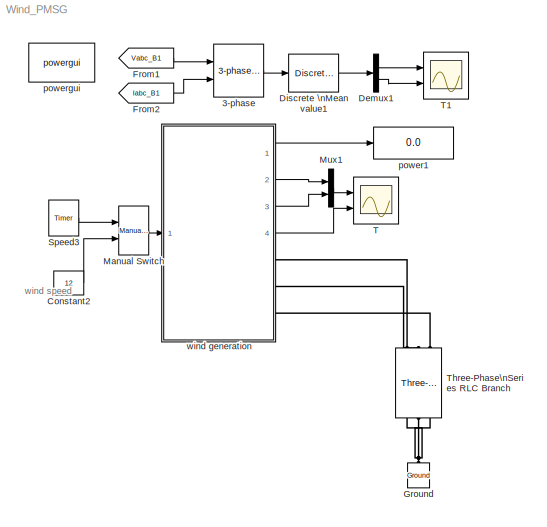
MODEL Wind_PMSG
KIND model
BLOCK [Reference] 3-phase   REF=powerlib_extras/Measurements/3-phase \nInstantaneous \nActive & Reactive Power
  FunctionWithSeparateData = off
  Ports = [2, 1]
  RTWMemSecDataConstants = Inherit from model
  RTWMemSecDataInternal = Inherit from model
  RTWMemSecDataParameters = Inherit from model
  RTWMemSecFuncExecute = Inherit from model
  RTWMemSecFuncInitTerm = Inherit from model
  SID = 1
  ShowPortLabels = FromPortIcon
  SourceBlock = powerlib_extras/Measurements/3-phase \nInstantaneous \nActive & Reactive Power
  SourceProductBaseCode = PS
  SourceProductName = Simscape Electrical
  SourceType = 3-phase instantaneous active and reactive power
  SystemSampleTime = -1
BLOCK [Constant] Constant2
  SID = 2
  Value = 12
BLOCK [Demux] Demux1
  DisplayOption = bar
  Outputs = 2
  Ports = [1, 2]
  SID = 3
BLOCK [Reference] Discrete \nMean value1  REF=powerlib_extras/Discrete\nMeasurements/Discrete \nMean value
  Freq = 50
  FunctionWithSeparateData = off
  Ports = [1, 1]
  RTWMemSecDataConstants = Inherit from model
  RTWMemSecDataInternal = Inherit from model
  RTWMemSecDataParameters = Inherit from model
  RTWMemSecFuncExecute = Inherit from model
  RTWMemSecFuncInitTerm = Inherit from model
  SID = 4
  ShowPortLabels = FromPortIcon
  SourceBlock = powerlib_extras/Discrete\nMeasurements/Discrete \nMean value
  SourceProductBaseCode = PS
  SourceProductName = Simscape Electrical
  SourceType = Discrete Mean value
  SystemSampleTime = -1
  Ts = 20e-6
  Vinit = 0
BLOCK [From] From1
  CloseFcn = tagdialog Close
  GotoTag = Vabc_B1
  SID = 5
  TagVisibility = global
BLOCK [From] From2
  CloseFcn = tagdialog Close
  GotoTag = Iabc_B1
  SID = 6
  TagVisibility = global
BLOCK [Reference] Ground  REF=powerlib/Elements/Ground
  LConnTagsString = a
  LeftPortType = p1
  PhysicalDomain = powersysdomain
  Ports = [0, 0, 0, 0, 0, 1]
  RightPortType = p1
  SID = 7
  SourceBlock = powerlib/Elements/Ground
  SourceProductBaseCode = PS
  SourceProductName = Simscape Electrical
  SourceType = Ground
  SubClassName = unknown
BLOCK [Reference] Manual Switch  REF=simulink/Signal\nRouting/Manual Switch
  FunctionWithSeparateData = off
  Ports = [2, 1]
  RTWMemSecDataConstants = Inherit from model
  RTWMemSecDataInternal = Inherit from model
  RTWMemSecDataParameters = Inherit from model
  RTWMemSecFuncExecute = Inherit from model
  RTWMemSecFuncInitTerm = Inherit from model
  SID = 8
  ShowPortLabels = FromPortIcon
  SourceBlock = simulink/Signal\nRouting/Manual Switch
  SourceProductBaseCode = SL
  SourceProductName = Simulink
  SourceType = Manual Switch
  SystemSampleTime = -1
  action = 0
  sw = 0
  varsize = off
BLOCK [Mux] Mux1
  DisplayOption = bar
  Inputs = 2
  Ports = [2, 1]
  SID = 9
BLOCK [Reference] Speed3  REF=powerlib_extras/Control \nBlocks/Timer
  FunctionWithSeparateData = off
  Ports = [0, 1]
  RTWMemSecDataConstants = Inherit from model
  RTWMemSecDataInternal = Inherit from model
  RTWMemSecDataParameters = Inherit from model
  RTWMemSecFuncExecute = Inherit from model
  RTWMemSecFuncInitTerm = Inherit from model
  SID = 10
  ShowPortLabels = FromPortIcon
  SourceBlock = powerlib_extras/Control \nBlocks/Timer
  SourceProductBaseCode = PS
  SourceProductName = Simscape Electrical
  SourceType = Timer
  SystemSampleTime = -1
  e = [12 7 12]
  t = [0 3 5]
BLOCK [Scope] T
  Floating = off
  NumInputPorts = 2
  Ports = [2]
  SID = 11
  ScopeSpecificationString = C++SS(StrPVP('Location','[-103, 381, 1177, 635]'),StrPVP('Open','off'),MxPVP('AxesTitles',54,'struct(''axes1'',''%<SignalLabel>'',''axes2'',''%<SignalLabel>'')'),StrPVP('YMin','39.75~152.46'),StrPVP('YMax','39.97~152.59'),StrPVP('SaveToWorkspace','on'),StrPVP('SaveName','Wind_MPPT'),StrPVP('DataFormat','StructureWithTime'),StrPVP('LimitDataPoints','off'),StrPVP('BlockParamSampleInput','on'),StrPVP...<+59ch>
BLOCK [Scope] T1
  Floating = off
  NumInputPorts = 2
  Ports = [2]
  SID = 12
  ScopeSpecificationString = C++SS(StrPVP('Location','[5, 43, 1285, 714]'),StrPVP('Open','off'),MxPVP('AxesTitles',54,'struct(''axes1'',''%<SignalLabel>'',''axes2'',''%<SignalLabel>'')'),StrPVP('YMin','4380~-4e-014'),StrPVP('YMax','4520~3.5e-014'),StrPVP('SaveToWorkspace','on'),StrPVP('SaveName','Wind_MPPT1'),StrPVP('DataFormat','StructureWithTime'),StrPVP('LimitDataPoints','off'),StrPVP('BlockParamSampleInput','on'),StrPVP('...<+57ch>
BLOCK [Reference] Three-Phase\nSeries RLC Branch  REF=powerlib/Elements/Three-Phase\nSeries RLC Branch
  AttributesFormatString = \\n
  BranchType = R
  Capacitance = 1e-6
  Inductance = 1e-3
  LConnTagsString = A|B|C
  LeftPortType = p1
  Measurements = None
  PhysicalDomain = powersysdomain
  Ports = [0, 0, 0, 0, 0, 3, 3]
  RConnTagsString = A|B|C
  Resistance = 25
  RightPortType = p1
  SID = 13
  SourceBlock = powerlib/Elements/Three-Phase\nSeries RLC Branch
  SourceProductBaseCode = PS
  SourceProductName = Simscape Electrical
  SourceType = Three-Phase Series RLC Branch
  SubClassName = unknown
BLOCK [Display] power1
  Decimation = 1
  Ports = [1]
  SID = 14
  SampleTime = 1e-3
BLOCK [Reference] powergui  REF=powerlib/powergui
  DisplayStyle = 1
  EnableUseOfTLC = off
  Frange = [0:2:500]
  FreqAxis = off
  FunctionMessages = off
  FunctionWithSeparateData = off
  HookPort = off
  Interpol = off
  MaxFrequency = 1000
  Ports = []
  RTWMemSecDataConstants = Inherit from model
  RTWMemSecDataInternal = Inherit from model
  RTWMemSecDataParameters = Inherit from model
  RTWMemSecFuncExecute = Inherit from model
  RTWMemSecFuncInitTerm = Inherit from model
  RestoreLinks = warning
  RmsSteady = 1
  SID = 15
  SPID = off
  SampleTime = 20e-6
  ShowGrid = off
  ShowPortLabels = FromPortIcon
  SourceBlock = powerlib/powergui
  SourceProductBaseCode = PS
  SourceProductName = Simscape Electrical
  SourceType = PSB option menu block
  StartTime = 0.0
  SwTol = 0
  SystemSampleTime = -1
  Ts = 0
  UserData = DataTag0
  UserDataPersistent = on
  Xlog = on
  Ylog = off
  ZoomFFT = on
  cycles = 1
  display = off
  echomessages = off
  frequency = 60
  frequencyindice = 0
  frequencyindicesteady = 1
  fundamental = 60
  methode = off
  save = off
  variable = ZData
  x0status = blocks
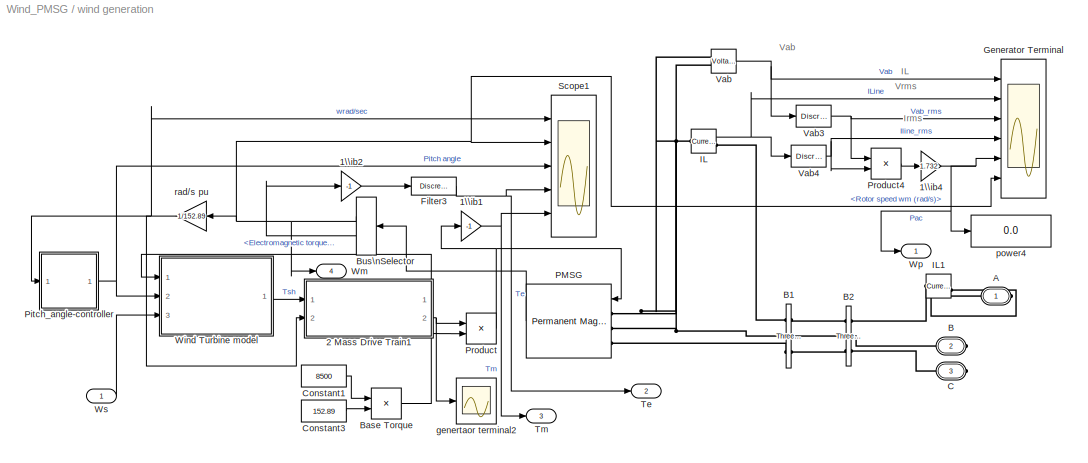
BLOCK [SubSystem] wind generation
  Ports = [1, 4, 0, 0, 0, 0, 3]
  RequestExecContextInheritance = off
  SID = 16
BLOCK [Gain] wind generation/1\\ib1
  Gain = -1
  SID = 18
BLOCK [Gain] wind generation/1\\ib2
  Gain = -1
  SID = 19
BLOCK [Gain] wind generation/1\\ib4
  Gain = 1.732
  SID = 20
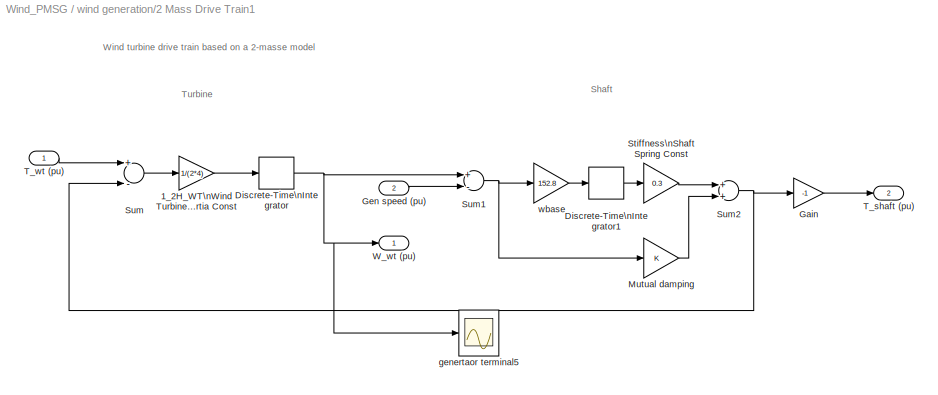
BLOCK [SubSystem] wind generation/2 Mass Drive Train1
  Ports = [2, 2]
  RequestExecContextInheritance = off
  SID = 21
BLOCK [Gain] wind generation/2 Mass Drive Train1/1_2H_WT\nWind Turbine Inertia Const
  Gain = 1/(2*4)
  SID = 24
BLOCK [DiscreteIntegrator] wind generation/2 Mass Drive Train1/Discrete-Time\nIntegrator
  ICPrevOutput = DiscIntNeverNeededParam
  ICPrevScaledInput = DiscIntNeverNeededParam
  InitialCondition = 1
  Ports = [1, 1]
  SID = 25
  SampleTime = 20e-6
BLOCK [DiscreteIntegrator] wind generation/2 Mass Drive Train1/Discrete-Time\nIntegrator1
  ICPrevOutput = DiscIntNeverNeededParam
  ICPrevScaledInput = DiscIntNeverNeededParam
  InitialCondition = 1/0.3
  LowerSaturationLimit = -4
  Ports = [1, 1]
  SID = 26
  SampleTime = 20e-6
  UpperSaturationLimit = 4
BLOCK [Gain] wind generation/2 Mass Drive Train1/Gain
  Gain = -1
  SID = 27
BLOCK [Inport] wind generation/2 Mass Drive Train1/Gen speed (pu)
  IconDisplay = Port number
  Port = 2
  SID = 23
BLOCK [Gain] wind generation/2 Mass Drive Train1/Mutual damping
  SID = 28
BLOCK [Gain] wind generation/2 Mass Drive Train1/Stiffness\nShaft Spring Const
  Gain = 0.3
  SID = 29
BLOCK [Sum] wind generation/2 Mass Drive Train1/Sum
  Inputs = +-
  Ports = [2, 1]
  SID = 30
BLOCK [Sum] wind generation/2 Mass Drive Train1/Sum1
  Inputs = +-
  Ports = [2, 1]
  SID = 31
BLOCK [Sum] wind generation/2 Mass Drive Train1/Sum2
  Ports = [2, 1]
  SID = 32
BLOCK [Outport] wind generation/2 Mass Drive Train1/T_shaft (pu)
  IconDisplay = Port number
  Port = 2
  SID = 36
BLOCK [Inport] wind generation/2 Mass Drive Train1/T_wt (pu)
  IconDisplay = Port number
  SID = 22
BLOCK [Outport] wind generation/2 Mass Drive Train1/W_wt (pu)
  IconDisplay = Port number
  SID = 35
BLOCK [Scope] wind generation/2 Mass Drive Train1/genertaor terminal5
  Floating = off
  NumInputPorts = 1
  Ports = [1]
  SID = 33
  ScopeSpecificationString = C++SS(StrPVP('Location','[131, 499, 657, 778]'),StrPVP('Open','off'),MxPVP('AxesTitles',54,'struct(''axes1'',''%<SignalLabel>'')'),StrPVP('YMin','0.94175'),StrPVP('YMax','0.94425'),StrPVP('SaveToWorkspace','on'),StrPVP('SaveName','Wwt'),StrPVP('DataFormat','StructureWithTime'),StrPVP('LimitDataPoints','off'),StrPVP('BlockParamSampleInput','on'),StrPVP('BlockParamSampleTime','100e-6'),StrPVP('Decim...<+12ch>
BLOCK [Gain] wind generation/2 Mass Drive Train1/wbase
  Gain = 152.8
  SID = 34
BLOCK [PMIOPort] wind generation/A
  SID = 70
  Side = Right
  Tag = PMCPort
BLOCK [PMIOPort] wind generation/B
  Port = 2
  SID = 71
  Side = Right
  Tag = PMCPort
BLOCK [Reference] wind generation/B1  REF=powerlib/Measurements/Three-Phase\nV-I Measurement
  CurrentMeasurement = yes
  FunctionWithSeparateData = off
  Ipu = off
  LabelI = Iabc_B1
  LabelV = Vabc_B1
  OutputType = Magnitude
  PSBequivalent = 0
  Pbase = 100e6
  PhasorSimulation = off
  Ports = [0, 0, 0, 0, 0, 3, 3]
  RTWMemSecDataConstants = Inherit from model
  RTWMemSecDataInternal = Inherit from model
  RTWMemSecDataParameters = Inherit from model
  RTWMemSecFuncExecute = Inherit from model
  RTWMemSecFuncInitTerm = Inherit from model
  SID = 40
  SetLabelI = on
  SetLabelV = on
  ShowPortLabels = FromPortIcon
  SourceBlock = powerlib/Measurements/Three-Phase\nV-I Measurement
  SourceProductBaseCode = PS
  SourceProductName = Simscape Electrical
  SourceType = Three-Phase VI Measurement
  SystemSampleTime = -1
  Vbase = 500e3
  VoltageMeasurement = phase-to-ground
  Vpu = off
BLOCK [Reference] wind generation/B2   REF=powerlib/Measurements/Three-Phase\nV-I Measurement
  CurrentMeasurement = no
  FunctionWithSeparateData = off
  Ipu = off
  LabelI = Iabc_B2
  LabelV = Vabc_B2
  OutputType = Magnitude
  PSBequivalent = 0
  Pbase = 100e6
  PhasorSimulation = off
  Ports = [0, 0, 0, 0, 0, 3, 3]
  RTWMemSecDataConstants = Inherit from model
  RTWMemSecDataInternal = Inherit from model
  RTWMemSecDataParameters = Inherit from model
  RTWMemSecFuncExecute = Inherit from model
  RTWMemSecFuncInitTerm = Inherit from model
  SID = 41
  SetLabelI = on
  SetLabelV = on
  ShowPortLabels = FromPortIcon
  SourceBlock = powerlib/Measurements/Three-Phase\nV-I Measurement
  SourceProductBaseCode = PS
  SourceProductName = Simscape Electrical
  SourceType = Three-Phase VI Measurement
  SystemSampleTime = -1
  Vbase = 500e3
  VoltageMeasurement = no
  Vpu = off
BLOCK [Product] wind generation/Base Torque
  InputSameDT = off
  Inputs = */
  OutDataTypeStr = Inherit: Inherit via internal rule
  Ports = [2, 1]
  SID = 42
  SaturateOnIntegerOverflow = off
BLOCK [BusSelector] wind generation/Bus\nSelector
  OutputAsBus = off
  OutputSignals = Rotor speed wm (rad/s),Electromagnetic torque Te (N*m)
  Ports = [1, 2]
  SID = 43
BLOCK [PMIOPort] wind generation/C
  Port = 3
  SID = 72
  Side = Right
  Tag = PMCPort
BLOCK [Constant] wind generation/Constant1
  SID = 44
  Value = 8500
BLOCK [Constant] wind generation/Constant3
  SID = 45
  Value = 152.89
BLOCK [Reference] wind generation/Filter3  REF=powerlib_extras/Discrete \nControl Blocks/Discrete\n1st-Order\nFilter
  FilterType = Lowpass
  FunctionWithSeparateData = off
  Initialize = off
  PlotResponse = off
  Ports = [1, 1]
  RTWMemSecDataConstants = Inherit from model
  RTWMemSecDataInternal = Inherit from model
  RTWMemSecDataParameters = Inherit from model
  RTWMemSecFuncExecute = Inherit from model
  RTWMemSecFuncInitTerm = Inherit from model
  SID = 46
  ShowPortLabels = FromPortIcon
  SourceBlock = powerlib_extras/Discrete \nControl Blocks/Discrete\n1st-Order\nFilter
  SourceProductBaseCode = PS
  SourceProductName = Simscape Electrical
  SourceType = Discrete 1st-Order Filter
  SystemSampleTime = -1
  Tc = 1e-3
  Ts = 20e-6
  Vac_Init = [0.8 -25 60]
  Vdc_Init = -0.4
  param1 = [1 500 0.1]
BLOCK [Scope] wind generation/Generator Terminal
  Floating = off
  NumInputPorts = 6
  Ports = [6]
  SID = 47
  ScopeSpecificationString = C++SS(StrPVP('Location','[189, 351, 939, 655]'),StrPVP('Open','off'),MxPVP('AxesTitles',54,'struct(''axes1'',''%<SignalLabel>'',''axes2'',''%<SignalLabel>'',''axes3'',''%<SignalLabel>'',''axes4'',''%<SignalLabel>'',''axes5'',''%<SignalLabel>'',''axes6'',''%<SignalLabel>'')'),StrPVP('YMin','-400~-10~265~4.9~2400~109.05'),StrPVP('YMax','400~7.5~295~5.6~2800~109.5'),StrPVP('SaveToWorkspace','on'),Str...<+212ch>
BLOCK [Reference] wind generation/IL  REF=powerlib/Measurements/Current Measurement
  FunctionWithSeparateData = off
  OutputType = Complex
  PSBequivalent = 0
  PhasorSimulation = off
  Ports = [0, 1, 0, 0, 0, 1, 1]
  RTWMemSecDataConstants = Inherit from model
  RTWMemSecDataInternal = Inherit from model
  RTWMemSecDataParameters = Inherit from model
  RTWMemSecFuncExecute = Inherit from model
  RTWMemSecFuncInitTerm = Inherit from model
  SID = 48
  ShowPortLabels = FromPortIcon
  SourceBlock = powerlib/Measurements/Current Measurement
  SourceProductBaseCode = PS
  SourceProductName = Simscape Electrical
  SourceType = Current Measurement
  SystemSampleTime = -1
BLOCK [Reference] wind generation/IL1  REF=powerlib/Measurements/Current Measurement
  FunctionWithSeparateData = off
  OutputType = Complex
  PSBequivalent = 0
  PhasorSimulation = off
  Ports = [0, 1, 0, 0, 0, 1, 1]
  RTWMemSecDataConstants = Inherit from model
  RTWMemSecDataInternal = Inherit from model
  RTWMemSecDataParameters = Inherit from model
  RTWMemSecFuncExecute = Inherit from model
  RTWMemSecFuncInitTerm = Inherit from model
  SID = 49
  ShowPortLabels = FromPortIcon
  SourceBlock = powerlib/Measurements/Current Measurement
  SourceProductBaseCode = PS
  SourceProductName = Simscape Electrical
  SourceType = Current Measurement
  SystemSampleTime = -1
BLOCK [Reference] wind generation/PMSG  REF=powerlib/Machines/Permanent Magnet\nSynchronous Machine
  Flat = 120
  Flux = 0.433
  FluxDistribution = Sinusoidal
  FunctionWithSeparateData = off
  Inductance = 8.5e-3
  InitialConditions = [0,0, 0,0]
  MachineConstant = Flux linkage established by magnets (V.s)
  Mechanical = [0.01197 0.001189 5]
  MechanicalLoad = Torque Tm
  PolePairs = 5
  Ports = [1, 1, 0, 0, 0, 3]
  PresetModel = No
  RTWMemSecDataConstants = Inherit from model
  RTWMemSecDataInternal = Inherit from model
  RTWMemSecDataParameters = Inherit from model
  RTWMemSecFuncExecute = Inherit from model
  RTWMemSecFuncInitTerm = Inherit from model
  Resistance = 0.425
  SID = 50
  ShowDetailedParameters = on
  ShowPortLabels = FromPortIcon
  SourceBlock = powerlib/Machines/Permanent Magnet\nSynchronous Machine
  SourceProductBaseCode = PS
  SourceProductName = Simscape Electrical
  SourceType = Permanent Magnet Synchronous Machine
  SystemSampleTime = -1
  TorqueCst = 3.2475
  TsBlock = -1
  TsPowergui = 0
  VoltageCst = 392.6876
  dqInductances = [0.0082 0.0082]
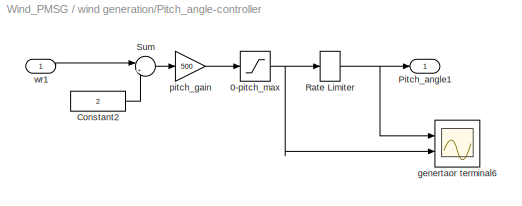
BLOCK [SubSystem] wind generation/Pitch_angle-controller
  Ports = [1, 1]
  RequestExecContextInheritance = off
  SID = 51
BLOCK [Saturate] wind generation/Pitch_angle-controller/0-pitch_max
  InputPortMap = u0
  LowerLimit = 0
  Ports = [1, 1]
  SID = 53
  UpperLimit = 45
BLOCK [Constant] wind generation/Pitch_angle-controller/Constant2
  SID = 54
  Value = 2
BLOCK [Outport] wind generation/Pitch_angle-controller/Pitch_angle1
  IconDisplay = Port number
  SID = 59
BLOCK [RateLimiter] wind generation/Pitch_angle-controller/Rate Limiter   
  FallingSlewLimit = -2
  RisingSlewLimit = 2
  SID = 55
BLOCK [Sum] wind generation/Pitch_angle-controller/Sum
  IconShape = round
  InputSameDT = off
  Inputs = |+-
  OutDataTypeStr = Inherit: Inherit via internal rule
  Ports = [2, 1]
  SID = 56
BLOCK [Scope] wind generation/Pitch_angle-controller/genertaor terminal6
  Floating = off
  NumInputPorts = 2
  Ports = [2]
  SID = 57
  ScopeSpecificationString = C++SS(StrPVP('Location','[483, 142, 1009, 421]'),StrPVP('Open','off'),MxPVP('AxesTitles',54,'struct(''axes1'',''%<SignalLabel>'',''axes2'',''%<SignalLabel>'')'),StrPVP('YMin','-1~-1'),StrPVP('YMax','1~1'),StrPVP('SaveToWorkspace','on'),StrPVP('SaveName','ScopeData9'),StrPVP('DataFormat','StructureWithTime'),StrPVP('LimitDataPoints','off'),StrPVP('BlockParamSampleInput','on'),StrPVP('BlockParamSamp...<+43ch>
BLOCK [Gain] wind generation/Pitch_angle-controller/pitch_gain
  Gain = 500
  SID = 58
BLOCK [Inport] wind generation/Pitch_angle-controller/wr1
  IconDisplay = Port number
  SID = 52
BLOCK [Product] wind generation/Product
  InputSameDT = off
  OutDataTypeStr = Inherit: Inherit via internal rule
  Ports = [2, 1]
  SID = 60
  SaturateOnIntegerOverflow = off
BLOCK [Product] wind generation/Product4
  InputSameDT = off
  OutDataTypeStr = Inherit: Inherit via internal rule
  Ports = [2, 1]
  SID = 61
  SaturateOnIntegerOverflow = off
BLOCK [Scope] wind generation/Scope1
  Floating = off
  NumInputPorts = 5
  Ports = [5]
  SID = 62
  ScopeSpecificationString = C++SS(StrPVP('Location','[589, 65, 1215, 714]'),StrPVP('Open','off'),MxPVP('AxesTitles',54,'struct(''axes1'',''%<SignalLabel>'',''axes2'',''%<SignalLabel>'',''axes3'',''%<SignalLabel>'',''axes4'',''%<SignalLabel>'',''axes5'',''%<SignalLabel>'')'),StrPVP('YMin','0.993~151.8~-1~37.5~40.05'),StrPVP('YMax','1~152.8~1~42.5~40.325'),StrPVP('SaveToWorkspace','on'),StrPVP('SaveName','ScopeData90'),StrPVP(...<+168ch>
BLOCK [Outport] wind generation/Te
  IconDisplay = Port number
  Port = 2
  SID = 74
BLOCK [Outport] wind generation/Tm
  IconDisplay = Port number
  Port = 3
  SID = 75
BLOCK [Reference] wind generation/Vab  REF=powerlib/Measurements/Voltage Measurement
  FunctionWithSeparateData = off
  OutputType = Complex
  PSBequivalent = 0
  PhasorSimulation = off
  Ports = [0, 1, 0, 0, 0, 2]
  RTWMemSecDataConstants = Inherit from model
  RTWMemSecDataInternal = Inherit from model
  RTWMemSecDataParameters = Inherit from model
  RTWMemSecFuncExecute = Inherit from model
  RTWMemSecFuncInitTerm = Inherit from model
  SID = 63
  ShowPortLabels = FromPortIcon
  SourceBlock = powerlib/Measurements/Voltage Measurement
  SourceProductBaseCode = PS
  SourceProductName = Simscape Electrical
  SourceType = Voltage Measurement
  SystemSampleTime = -1
BLOCK [Reference] wind generation/Vab3  REF=powerlib_extras/Discrete\nMeasurements/Discrete \nRMS value
  Freq = 50
  FunctionWithSeparateData = off
  Mag_Init = 0
  Ports = [1, 1]
  RTWMemSecDataConstants = Inherit from model
  RTWMemSecDataInternal = Inherit from model
  RTWMemSecDataParameters = Inherit from model
  RTWMemSecFuncExecute = Inherit from model
  RTWMemSecFuncInitTerm = Inherit from model
  SID = 64
  ShowPortLabels = FromPortIcon
  SourceBlock = powerlib_extras/Discrete\nMeasurements/Discrete \nRMS value
  SourceProductBaseCode = PS
  SourceProductName = Simscape Electrical
  SourceType = Discrete RMS value
  SystemSampleTime = -1
  Ts = 20e-6
BLOCK [Reference] wind generation/Vab4  REF=powerlib_extras/Discrete\nMeasurements/Discrete \nRMS value
  Freq = 50
  FunctionWithSeparateData = off
  Mag_Init = 0
  Ports = [1, 1]
  RTWMemSecDataConstants = Inherit from model
  RTWMemSecDataInternal = Inherit from model
  RTWMemSecDataParameters = Inherit from model
  RTWMemSecFuncExecute = Inherit from model
  RTWMemSecFuncInitTerm = Inherit from model
  SID = 65
  ShowPortLabels = FromPortIcon
  SourceBlock = powerlib_extras/Discrete\nMeasurements/Discrete \nRMS value
  SourceProductBaseCode = PS
  SourceProductName = Simscape Electrical
  SourceType = Discrete RMS value
  SystemSampleTime = -1
  Ts = 20e-6
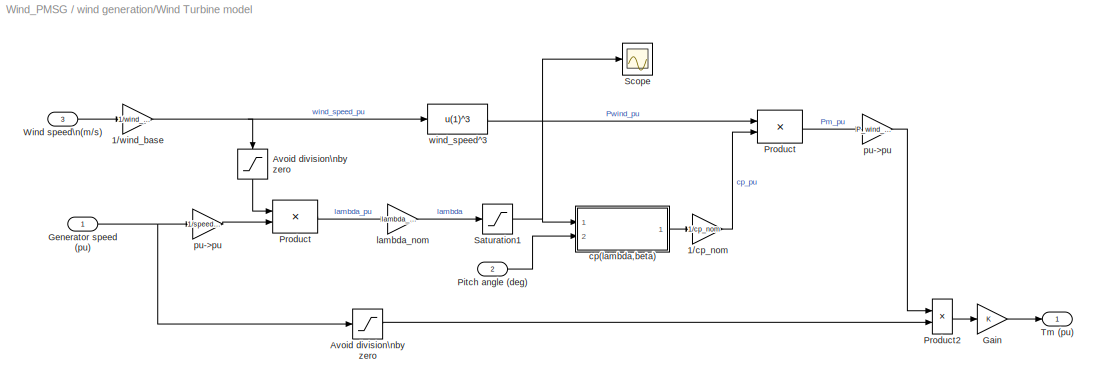
BLOCK [SubSystem] wind generation/Wind Turbine model
  AncestorBlock = DRlib/Wind Generation/Wind Turbine
  DialogController = POWERSYS.PowerSysDialog
  Ports = [3, 1]
  RequestExecContextInheritance = off
  SID = 66
BLOCK [Gain] wind generation/Wind Turbine model/1//cp_nom
  Gain = 1/cp_nom
  SID = 66:4
BLOCK [Gain] wind generation/Wind Turbine model/1//wind_base
  Gain = 1/wind_base
  SID = 66:5
BLOCK [Saturate] wind generation/Wind Turbine model/Avoid division\nby zero
  InputPortMap = u0
  LowerLimit = 1e-6
  Ports = [1, 1]
  SID = 66:6
  UpperLimit = 1e6
BLOCK [Saturate] wind generation/Wind Turbine model/Avoid division\nby zero 
  InputPortMap = u0
  LowerLimit = 1e-6
  Ports = [1, 1]
  SID = 66:7
  UpperLimit = 1e6
BLOCK [Gain] wind generation/Wind Turbine model/Gain
  SID = 66:8
BLOCK [Inport] wind generation/Wind Turbine model/Generator speed (pu)
  IconDisplay = Port number
  SID = 66:1
BLOCK [Inport] wind generation/Wind Turbine model/Pitch angle (deg)
  IconDisplay = Port number
  Port = 2
  SID = 66:2
BLOCK [Product] wind generation/Wind Turbine model/Product
  InputSameDT = off
  Inputs = /*
  Ports = [2, 1]
  RndMeth = Floor
  SID = 66:9
BLOCK [Product] wind generation/Wind Turbine model/Product 
  InputSameDT = off
  Ports = [2, 1]
  RndMeth = Floor
  SID = 66:10
BLOCK [Product] wind generation/Wind Turbine model/Product2
  Inputs = */
  Ports = [2, 1]
  RndMeth = Floor
  SID = 66:11
BLOCK [Saturate] wind generation/Wind Turbine model/Saturation1
  InputPortMap = u0
  LowerLimit = 1e-6
  Ports = [1, 1]
  SID = 66:12
  UpperLimit = inf
BLOCK [Scope] wind generation/Wind Turbine model/Scope
  Floating = off
  NumInputPorts = 1
  Ports = [1]
  SID = 66:13
  ScopeSpecificationString = C++SS(StrPVP('Location','[188, 390, 512, 629]'),StrPVP('Open','off'),MxPVP('AxesTitles',54,'struct(''axes1'',''%<SignalLabel>'')'),StrPVP('SaveName','ScopeData10'),StrPVP('DataFormat','StructureWithTime'),StrPVP('BlockParamSampleTime','0'),StrPVP('LimitDataPoints','on'),StrPVP('Decimation','1'),StrPVP('BlockParamSampleInput','off'))
BLOCK [Outport] wind generation/Wind Turbine model/Tm (pu)
  IconDisplay = Port number
  SID = 66:26
BLOCK [Inport] wind generation/Wind Turbine model/Wind speed\n(m//s)
  IconDisplay = Port number
  Port = 3
  SID = 66:3
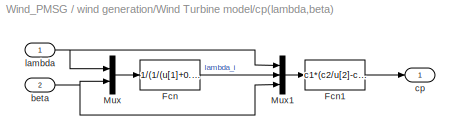
BLOCK [SubSystem] wind generation/Wind Turbine model/cp(lambda,beta)
  Ports = [2, 1]
  RequestExecContextInheritance = off
  SID = 66:14
BLOCK [Fcn] wind generation/Wind Turbine model/cp(lambda,beta)/Fcn
  Expr = 1/(1/(u[1]+0.08*u[2])-0.035/(u[2]^3+1))
  SID = 66:17
BLOCK [Fcn] wind generation/Wind Turbine model/cp(lambda,beta)/Fcn1
  Expr = c1*(c2/u[2]-c3*u[3]-c4)*exp(-c5/u[2])+c6*u[1]
  SID = 66:18
BLOCK [Mux] wind generation/Wind Turbine model/cp(lambda,beta)/Mux
  DisplayOption = bar
  Inputs = 2
  Ports = [2, 1]
  SID = 66:19
BLOCK [Mux] wind generation/Wind Turbine model/cp(lambda,beta)/Mux1
  DisplayOption = bar
  Inputs = 3
  Ports = [3, 1]
  SID = 66:20
BLOCK [Inport] wind generation/Wind Turbine model/cp(lambda,beta)/beta
  IconDisplay = Port number
  Port = 2
  SID = 66:16
BLOCK [Outport] wind generation/Wind Turbine model/cp(lambda,beta)/cp
  IconDisplay = Port number
  SID = 66:21
BLOCK [Inport] wind generation/Wind Turbine model/cp(lambda,beta)/lambda
  IconDisplay = Port number
  SID = 66:15
BLOCK [Gain] wind generation/Wind Turbine model/lambda_nom
  Gain = lambda_nom
  SID = 66:22
BLOCK [Gain] wind generation/Wind Turbine model/pu->pu
  Gain = P_wind_base*Pnom/Pelec_base
  SID = 66:23
BLOCK [Gain] wind generation/Wind Turbine model/pu->pu 
  Gain = 1/speed_nom
  SID = 66:24
BLOCK [Fcn] wind generation/Wind Turbine model/wind_speed^3
  Expr = u(1)^3
  SID = 66:25
BLOCK [Outport] wind generation/Wm
  IconDisplay = Port number
  Port = 4
  SID = 76
BLOCK [Outport] wind generation/Wp
  IconDisplay = Port number
  SID = 73
BLOCK [Inport] wind generation/Ws
  IconDisplay = Port number
  SID = 17
BLOCK [Scope] wind generation/genertaor terminal2
  Floating = off
  NumInputPorts = 1
  Ports = [1]
  SID = 67
  ScopeSpecificationString = C++SS(StrPVP('Location','[231, 319, 757, 598]'),StrPVP('Open','off'),MxPVP('AxesTitles',54,'struct(''axes1'',''%<SignalLabel>'')'),StrPVP('YMin','-0.5138'),StrPVP('YMax','-0.5122'),StrPVP('SaveToWorkspace','on'),StrPVP('SaveName','ref_torque1'),StrPVP('DataFormat','StructureWithTime'),StrPVP('LimitDataPoints','off'),StrPVP('BlockParamSampleInput','on'),StrPVP('BlockParamSampleTime','100e-6'),StrPV...<+20ch>
BLOCK [Display] wind generation/power4
  Decimation = 1
  Ports = [1]
  SID = 68
  SampleTime = 1e-3
BLOCK [Gain] wind generation/rad//s pu
  Gain = 1/152.89
  SID = 69
ANNOTATION (root): wind speed
ANNOTATION wind generation: IL
ANNOTATION wind generation: Irms
ANNOTATION wind generation: Vab
ANNOTATION wind generation: Vrms
ANNOTATION wind generation/2 Mass Drive Train1: Shaft
ANNOTATION wind generation/2 Mass Drive Train1: Turbine
ANNOTATION wind generation/2 Mass Drive Train1: Wind turbine drive train based on a 2-masse model
LINE 3-phase :1 -> Discrete \nMean value1:1
LINE Constant2:1 -> Manual Switch:2
LINE Demux1:1 -> T1:1
LINE Demux1:2 -> T1:2
LINE Discrete \nMean value1:1 -> Demux1:1
LINE From1:1 -> 3-phase :1
LINE From2:1 -> 3-phase :2
LINE Manual Switch:1 -> wind generation:1
LINE Mux1:1 -> T:1
LINE Speed3:1 -> Manual Switch:1
NET wind generation/1\\ib1:1 -> wind generation/Scope1:5, wind generation/Tm:1
LINE wind generation/1\\ib2:1 -> wind generation/Filter3:1
NET wind generation/1\\ib4:1 -> wind generation/Generator Terminal:5, wind generation/Wp:1, wind generation/power4:1
LINE wind generation/2 Mass Drive Train1/1_2H_WT\nWind Turbine Inertia Const:1 -> wind generation/2 Mass Drive Train1/Discrete-Time\nIntegrator:1
LINE wind generation/2 Mass Drive Train1/Discrete-Time\nIntegrator1:1 -> wind generation/2 Mass Drive Train1/Stiffness\nShaft Spring Const:1
NET wind generation/2 Mass Drive Train1/Discrete-Time\nIntegrator:1 -> wind generation/2 Mass Drive Train1/Sum1:1, wind generation/2 Mass Drive Train1/W_wt (pu):1, wind generation/2 Mass Drive Train1/genertaor terminal5:1
LINE wind generation/2 Mass Drive Train1/Gain:1 -> wind generation/2 Mass Drive Train1/T_shaft (pu):1
LINE wind generation/2 Mass Drive Train1/Gen speed (pu):1 -> wind generation/2 Mass Drive Train1/Sum1:2
LINE wind generation/2 Mass Drive Train1/Mutual damping:1 -> wind generation/2 Mass Drive Train1/Sum2:2
LINE wind generation/2 Mass Drive Train1/Stiffness\nShaft Spring Const:1 -> wind generation/2 Mass Drive Train1/Sum2:1
NET wind generation/2 Mass Drive Train1/Sum1:1 -> wind generation/2 Mass Drive Train1/Mutual damping:1, wind generation/2 Mass Drive Train1/wbase:1
NET wind generation/2 Mass Drive Train1/Sum2:1 -> wind generation/2 Mass Drive Train1/Gain:1, wind generation/2 Mass Drive Train1/Sum:2
LINE wind generation/2 Mass Drive Train1/Sum:1 -> wind generation/2 Mass Drive Train1/1_2H_WT\nWind Turbine Inertia Const:1
LINE wind generation/2 Mass Drive Train1/T_wt (pu):1 -> wind generation/2 Mass Drive Train1/Sum:1
LINE wind generation/2 Mass Drive Train1/wbase:1 -> wind generation/2 Mass Drive Train1/Discrete-Time\nIntegrator1:1
LINE wind generation/2 Mass Drive Train1:1 -> wind generation/Wind Turbine model:1
NET wind generation/2 Mass Drive Train1:2 -> wind generation/Product:1, wind generation/genertaor terminal2:1
LINE wind generation/Base Torque:1 -> wind generation/Product:2
NET wind generation/Bus\nSelector:1 -> wind generation/Generator Terminal:6, wind generation/Scope1:2, wind generation/Wm:1, wind generation/rad//s pu:1
LINE wind generation/Bus\nSelector:2 -> wind generation/1\\ib2:1
LINE wind generation/Constant1:1 -> wind generation/Base Torque:1
LINE wind generation/Constant3:1 -> wind generation/Base Torque:2
NET wind generation/Filter3:1 -> wind generation/Scope1:4, wind generation/Te:1
NET wind generation/IL:1 -> wind generation/Generator Terminal:2, wind generation/Vab4:1
LINE wind generation/PMSG:1 -> wind generation/Bus\nSelector:1
NET wind generation/Pitch_angle-controller/0-pitch_max:1 -> wind generation/Pitch_angle-controller/Rate Limiter   :1, wind generation/Pitch_angle-controller/genertaor terminal6:2
LINE wind generation/Pitch_angle-controller/Constant2:1 -> wind generation/Pitch_angle-controller/Sum:2
NET wind generation/Pitch_angle-controller/Rate Limiter   :1 -> wind generation/Pitch_angle-controller/Pitch_angle1:1, wind generation/Pitch_angle-controller/genertaor terminal6:1
LINE wind generation/Pitch_angle-controller/Sum:1 -> wind generation/Pitch_angle-controller/pitch_gain:1
LINE wind generation/Pitch_angle-controller/pitch_gain:1 -> wind generation/Pitch_angle-controller/0-pitch_max:1
LINE wind generation/Pitch_angle-controller/wr1:1 -> wind generation/Pitch_angle-controller/Sum:1
NET wind generation/Pitch_angle-controller:1 -> wind generation/Scope1:3, wind generation/Wind Turbine model:2
LINE wind generation/Product4:1 -> wind generation/1\\ib4:1
NET wind generation/Product:1 -> wind generation/1\\ib1:1, wind generation/PMSG:1
NET wind generation/Vab3:1 -> wind generation/Generator Terminal:3, wind generation/Product4:1
NET wind generation/Vab4:1 -> wind generation/Generator Terminal:4, wind generation/Product4:2
NET wind generation/Vab:1 -> wind generation/Generator Terminal:1, wind generation/Vab3:1
LINE wind generation/Wind Turbine model/1//cp_nom:1 -> wind generation/Wind Turbine model/Product :2
NET wind generation/Wind Turbine model/1//wind_base:1 -> wind generation/Wind Turbine model/Avoid division\nby zero :1, wind generation/Wind Turbine model/wind_speed^3:1
LINE wind generation/Wind Turbine model/Avoid division\nby zero :1 -> wind generation/Wind Turbine model/Product:1
LINE wind generation/Wind Turbine model/Avoid division\nby zero:1 -> wind generation/Wind Turbine model/Product2:2
LINE wind generation/Wind Turbine model/Gain:1 -> wind generation/Wind Turbine model/Tm (pu):1
NET wind generation/Wind Turbine model/Generator speed (pu):1 -> wind generation/Wind Turbine model/Avoid division\nby zero:1, wind generation/Wind Turbine model/pu->pu :1
LINE wind generation/Wind Turbine model/Pitch angle (deg):1 -> wind generation/Wind Turbine model/cp(lambda,beta):2
LINE wind generation/Wind Turbine model/Product :1 -> wind generation/Wind Turbine model/pu->pu:1
LINE wind generation/Wind Turbine model/Product2:1 -> wind generation/Wind Turbine model/Gain:1
LINE wind generation/Wind Turbine model/Product:1 -> wind generation/Wind Turbine model/lambda_nom:1
NET wind generation/Wind Turbine model/Saturation1:1 -> wind generation/Wind Turbine model/Scope:1, wind generation/Wind Turbine model/cp(lambda,beta):1
LINE wind generation/Wind Turbine model/Wind speed\n(m//s):1 -> wind generation/Wind Turbine model/1//wind_base:1
LINE wind generation/Wind Turbine model/cp(lambda,beta)/Fcn1:1 -> wind generation/Wind Turbine model/cp(lambda,beta)/cp:1
LINE wind generation/Wind Turbine model/cp(lambda,beta)/Fcn:1 -> wind generation/Wind Turbine model/cp(lambda,beta)/Mux1:2
LINE wind generation/Wind Turbine model/cp(lambda,beta)/Mux1:1 -> wind generation/Wind Turbine model/cp(lambda,beta)/Fcn1:1
LINE wind generation/Wind Turbine model/cp(lambda,beta)/Mux:1 -> wind generation/Wind Turbine model/cp(lambda,beta)/Fcn:1
NET wind generation/Wind Turbine model/cp(lambda,beta)/beta:1 -> wind generation/Wind Turbine model/cp(lambda,beta)/Mux1:3, wind generation/Wind Turbine model/cp(lambda,beta)/Mux:2
NET wind generation/Wind Turbine model/cp(lambda,beta)/lambda:1 -> wind generation/Wind Turbine model/cp(lambda,beta)/Mux1:1, wind generation/Wind Turbine model/cp(lambda,beta)/Mux:1
LINE wind generation/Wind Turbine model/cp(lambda,beta):1 -> wind generation/Wind Turbine model/1//cp_nom:1
LINE wind generation/Wind Turbine model/lambda_nom:1 -> wind generation/Wind Turbine model/Saturation1:1
LINE wind generation/Wind Turbine model/pu->pu :1 -> wind generation/Wind Turbine model/Product:2
LINE wind generation/Wind Turbine model/pu->pu:1 -> wind generation/Wind Turbine model/Product2:1
LINE wind generation/Wind Turbine model/wind_speed^3:1 -> wind generation/Wind Turbine model/Product :1
LINE wind generation/Wind Turbine model:1 -> wind generation/2 Mass Drive Train1:1
LINE wind generation/Ws:1 -> wind generation/Wind Turbine model:3
NET wind generation/rad//s pu:1 -> wind generation/2 Mass Drive Train1:2, wind generation/Pitch_angle-controller:1, wind generation/Scope1:1
LINE wind generation:1 -> power1:1
LINE wind generation:2 -> Mux1:1
LINE wind generation:3 -> Mux1:2
LINE wind generation:4 -> T:2
PNET net1: Ground:LConn1 -- Three-Phase\nSeries RLC Branch:RConn1 -- Three-Phase\nSeries RLC Branch:RConn2 -- Three-Phase\nSeries RLC Branch:RConn3
PLINE Three-Phase\nSeries RLC Branch:LConn1 -- wind generation:RConn1
PLINE Three-Phase\nSeries RLC Branch:LConn2 -- wind generation:RConn2
PLINE Three-Phase\nSeries RLC Branch:LConn3 -- wind generation:RConn3
PLINE wind generation/A:RConn1 -- wind generation/IL1:RConn1
PLINE wind generation/B1:LConn1 -- wind generation/IL:RConn1
PNET net2: wind generation/B1:LConn2 -- wind generation/PMSG:LConn2 -- wind generation/Vab:LConn2
PLINE wind generation/B1:LConn3 -- wind generation/PMSG:LConn3
PLINE wind generation/B1:RConn1 -- wind generation/B2 :LConn1
PLINE wind generation/B1:RConn2 -- wind generation/B2 :LConn2
PLINE wind generation/B1:RConn3 -- wind generation/B2 :LConn3
PLINE wind generation/B2 :RConn1 -- wind generation/IL1:LConn1
PLINE wind generation/B2 :RConn2 -- wind generation/B:RConn1
PLINE wind generation/B2 :RConn3 -- wind generation/C:RConn1
PNET net3: wind generation/IL:LConn1 -- wind generation/PMSG:LConn1 -- wind generation/Vab:LConn1
note: NET lines group one-source signal fan-out (src -> all destinations, sorted); 1:1 wires keep LINE; PNET lines group multi-terminal physical nets as a canonical sorted terminal list (undirected conserving connections); 2-terminal nets keep the pairwise PLINE form
